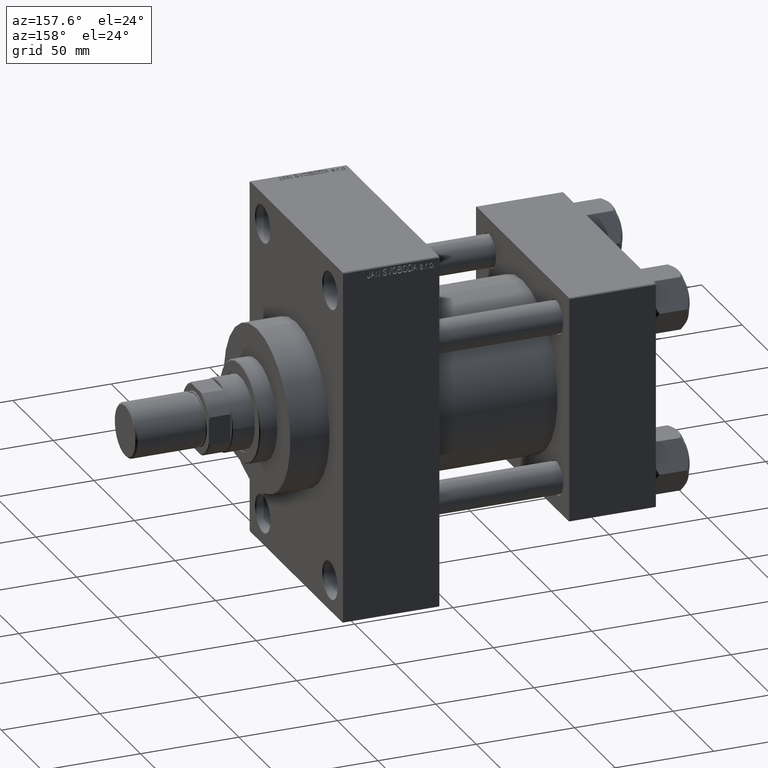
[diagram: clean part render]
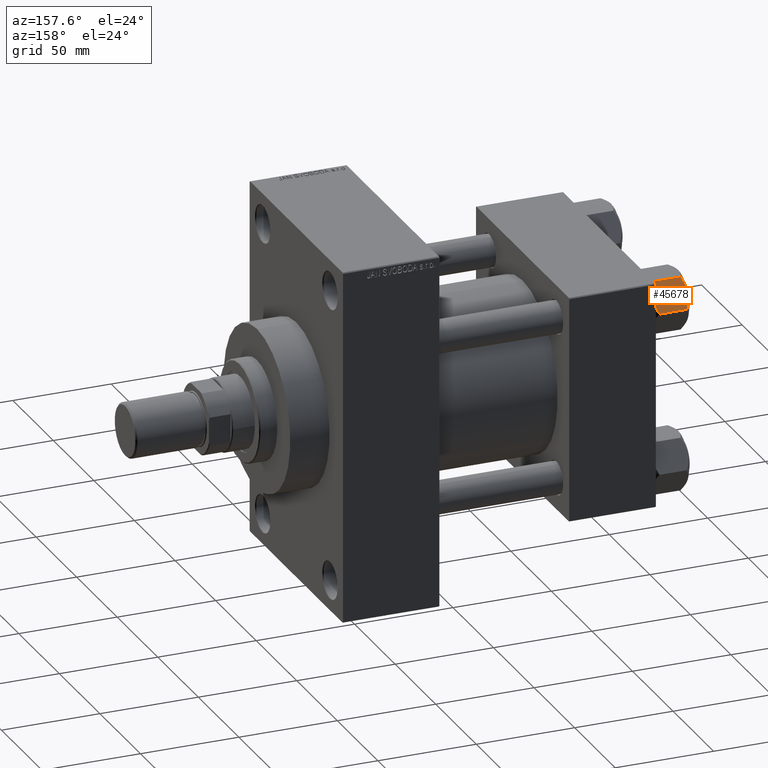
[diagram: same view with one face highlighted and labeled with its STEP entity id]
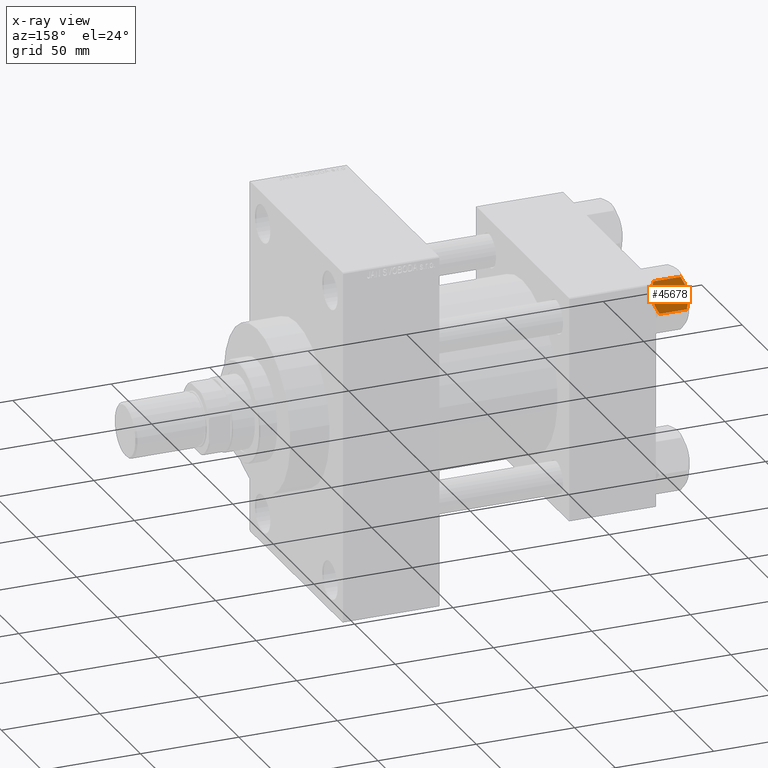
[diagram: x-ray of the same camera — body ghosted, the highlighted face saturated]
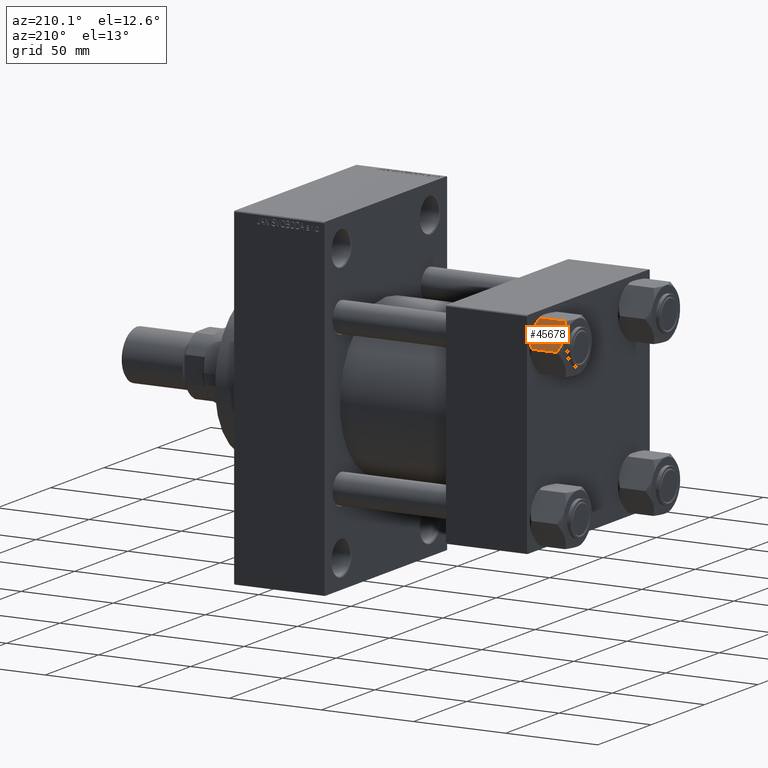
[diagram: same view with one face highlighted and labeled with its STEP entity id]
A machine part, auxiliary view. The second image highlights one B-rep face of the part: STEP entity #45678.
The next image is the same camera in x-ray: the body ghosted, the highlighted face saturated — about 0% of this face is hidden behind the body in this view.
A second angle (auxiliary view) of the same face is appended — the face is thin or edge-on in the first view.
In plain terms, the highlighted planar face has unit normal (0, -0.866, -0.5).
Its self-contained STEP definition (entity closure, byte-faithful):
#28 = DIRECTION ( 'NONE',  ( -0.5000000000000002220, -0.8660254037844384856, 0.000000000000000000 ) ) ;
#133 = EDGE_CURVE ( 'NONE', #13576, #27764, #678, .T. ) ;
#301 = CARTESIAN_POINT ( 'NONE',  ( 7.903528262322674358, -13.36532110482643176, -2.000000000000000000 ) ) ;
#678 = B_SPLINE_CURVE_WITH_KNOTS ( 'NONE', 3,
 ( #20773, #17718, #33131, #2561, #48522, #29577, #5871, #9675 ),
 .UNSPECIFIED., .F., .F.,
 ( 4, 2, 2, 4 ),
 ( 0.007890825462474425692, 0.01181022244528553977, 0.01376992093669109768, 0.01572961942809665559 ),
 .UNSPECIFIED. ) ;
#754 = DIRECTION ( 'NONE',  ( -0.000000000000000000, -0.000000000000000000, 1.000000000000000000 ) ) ;
#861 = VERTEX_POINT ( 'NONE', #8079 ) ;
#1622 = ORIENTED_EDGE ( 'NONE', *, *, #46628, .F. ) ;
#2516 = CARTESIAN_POINT ( 'NONE',  ( 15.52647173767732980, -0.1619957022865074481, -16.00000000000000000 ) ) ;
#2561 = CARTESIAN_POINT ( 'NONE',  ( 13.99051971937274352, -2.822342635978011938, -0.7317196846281139866 ) ) ;
#3470 = VERTEX_POINT ( 'NONE', #36950 ) ;
#4993 = LINE ( 'NONE', #44340, #9195 ) ;
#5670 = VERTEX_POINT ( 'NONE', #15829 ) ;
#5871 = CARTESIAN_POINT ( 'NONE',  ( 15.22736220980736022, -0.6800686015852294153, -1.706311779141445495 ) ) ;
#6320 = CARTESIAN_POINT ( 'NONE',  ( 11.04378428799594936, -7.926238119586006547, -0.05089381635301404999 ) ) ;
#7612 = ORIENTED_EDGE ( 'NONE', *, *, #24037, .F. ) ;
#7750 = CARTESIAN_POINT ( 'NONE',  ( 7.903528262322674358, -13.36532110482643176, -16.00000000000000000 ) ) ;
#8079 = CARTESIAN_POINT ( 'NONE',  ( 7.903528262322674358, -13.36532110482643176, -16.00000000000000000 ) ) ;
#8437 = EDGE_CURVE ( 'NONE', #19208, #11164, #38859, .T. ) ;
#9195 = VECTOR ( 'NONE', #9286, 1000.000000000000114 ) ;
#9286 = DIRECTION ( 'NONE',  ( 0.5000000000000002220, 0.8660254037844384856, -0.000000000000000000 ) ) ;
#9603 = VERTEX_POINT ( 'NONE', #45819 ) ;
#9675 = CARTESIAN_POINT ( 'NONE',  ( 15.52647173767732980, -0.1619957022865074481, -2.000000000000000000 ) ) ;
#10690 = CARTESIAN_POINT ( 'NONE',  ( 15.62000000000000455, -1.379485931020374819E-15, -16.00000000000000000 ) ) ;
#10695 = CARTESIAN_POINT ( 'NONE',  ( 14.92760668674625535, -1.199260397376455067, -16.58801072835992585 ) ) ;
#10879 = AXIS2_PLACEMENT_3D ( 'NONE', #27298, #19470, #28 ) ;
#10914 = VECTOR ( 'NONE', #19912, 1000.000000000000114 ) ;
#11164 = VERTEX_POINT ( 'NONE', #25452 ) ;
#11292 = CARTESIAN_POINT ( 'NONE',  ( 11.05297796109637964, -7.910314210667883650, -18.00000000000000000 ) ) ;
#11930 = PLANE ( 'NONE',  #10879 ) ;
#12309 = CARTESIAN_POINT ( 'NONE',  ( 11.71500000000000341, -6.763658403556471299, -18.00000000000000000 ) ) ;
#13122 = EDGE_CURVE ( 'NONE', #11164, #13576, #17453, .T. ) ;
#13576 = VERTEX_POINT ( 'NONE', #33275 ) ;
#14022 = ORIENTED_EDGE ( 'NONE', *, *, #13122, .F. ) ;
#14123 = CARTESIAN_POINT ( 'NONE',  ( 15.62000000000000455, -1.379485931020374819E-15, -16.00000000000000000 ) ) ;
#14939 = VECTOR ( 'NONE', #25725, 1000.000000000000114 ) ;
#15231 = VERTEX_POINT ( 'NONE', #2516 ) ;
#15474 = CARTESIAN_POINT ( 'NONE',  ( 13.04337073483127973, -4.462852799541088267, -17.75691532989870325 ) ) ;
#15633 = CARTESIAN_POINT ( 'NONE',  ( 11.71500000000000341, -6.763658403556471299, -18.00000000000000000 ) ) ;
#15829 = CARTESIAN_POINT ( 'NONE',  ( 7.810000000000002274, -13.52731680711293372, -16.00000000000000000 ) ) ;
#15901 = CARTESIAN_POINT ( 'NONE',  ( 7.810000000000002274, -13.52731680711293372, -1.999999999999998224 ) ) ;
#17453 = B_SPLINE_CURVE_WITH_KNOTS ( 'NONE', 3,
 ( #301, #19995, #25503, #40912, #28802, #6320, #36386, #37124 ),
 .UNSPECIFIED., .F., .F.,
 ( 4, 2, 2, 4 ),
 ( 4.472842641876105202E-07, 0.003945636373369308322, 0.005918230917921867007, 0.007890825462474425692 ),
 .UNSPECIFIED. ) ;
#17718 = CARTESIAN_POINT ( 'NONE',  ( 12.37702203890362540, -5.617002596445055396, 1.097754699641572845E-15 ) ) ;
#17902 = LINE ( 'NONE', #14123, #14939 ) ;
#19090 = CARTESIAN_POINT ( 'NONE',  ( 10.40215497533437450, -9.037572688741349225, -17.80281335400754372 ) ) ;
#19208 = VERTEX_POINT ( 'NONE', #15901 ) ;
#19338 = CARTESIAN_POINT ( 'NONE',  ( 8.202637790192644829, -12.84724820552770908, -16.29368822085855228 ) ) ;
#19470 = DIRECTION ( 'NONE',  ( -0.8660254037844385966, 0.5000000000000003331, 0.000000000000000000 ) ) ;
#19889 = EDGE_CURVE ( 'NONE', #5670, #19208, #39134, .T. ) ;
#19912 = DIRECTION ( 'NONE',  ( 0.5000000000000002220, 0.8660254037844384856, -0.000000000000000000 ) ) ;
#19937 = CARTESIAN_POINT ( 'NONE',  ( 7.810000000000002274, -13.52731680711293372, -18.00000000000000000 ) ) ;
#19995 = CARTESIAN_POINT ( 'NONE',  ( 8.502393313253756801, -12.32805640973649197, -1.411989271640069044 ) ) ;
#20773 = CARTESIAN_POINT ( 'NONE',  ( 11.71500000000000341, -6.763658403556471299, 0.000000000000000000 ) ) ;
#20824 = EDGE_LOOP ( 'NONE', ( #47894, #31303, #33831, #46596, #14022, #37035, #32185, #1622, #7612, #36991 ) ) ;
#21963 = EDGE_CURVE ( 'NONE', #9603, #3470, #43591, .T. ) ;
#22531 = CARTESIAN_POINT ( 'NONE',  ( 15.52647173767732980, -0.1619957022865074481, -16.00000000000000000 ) ) ;
#22876 = CARTESIAN_POINT ( 'NONE',  ( 8.506059550806615022, -12.32170630002230638, -16.56553707812499709 ) ) ;
#23291 = EDGE_CURVE ( 'NONE', #9603, #15231, #49296, .T. ) ;
#23890 = CARTESIAN_POINT ( 'NONE',  ( 9.439480280627259745, -10.70497417113492666, -17.26828031537187869 ) ) ;
#24037 = EDGE_CURVE ( 'NONE', #46768, #861, #33110, .T. ) ;
#25452 = CARTESIAN_POINT ( 'NONE',  ( 7.903528262322674358, -13.36532110482643176, -2.000000000000000000 ) ) ;
#25503 = CARTESIAN_POINT ( 'NONE',  ( 9.114548888011784200, -11.26777185211904353, -0.9142282604026938930 ) ) ;
#25725 = DIRECTION ( 'NONE',  ( -0.5000000000000002220, -0.8660254037844384856, 0.000000000000000000 ) ) ;
#26067 = CARTESIAN_POINT ( 'NONE',  ( 14.31545111198821729, -2.259544954993898624, -17.08577173959729834 ) ) ;
#27298 = CARTESIAN_POINT ( 'NONE',  ( 15.62000000000000455, -1.379485931020374819E-15, -18.00000000000000000 ) ) ;
#27764 = VERTEX_POINT ( 'NONE', #30003 ) ;
#28749 = B_SPLINE_CURVE_WITH_KNOTS ( 'NONE', 3,
 ( #22531, #10695, #26067, #46274, #15474, #37948, #41477, #34418 ),
 .UNSPECIFIED., .F., .F.,
 ( 4, 2, 2, 4 ),
 ( 4.472842641901889415E-07, 0.003945636373369311792, 0.005918230917921871344, 0.007890825462474430896 ),
 .UNSPECIFIED. ) ;
#28802 = CARTESIAN_POINT ( 'NONE',  ( 10.38662926516871998, -9.064464007571853443, -0.2430846701012968625 ) ) ;
#29577 = CARTESIAN_POINT ( 'NONE',  ( 14.92394044919338292, -1.205610507090636219, -1.434462921875003349 ) ) ;
#30003 = CARTESIAN_POINT ( 'NONE',  ( 15.52647173767732980, -0.1619957022865074481, -2.000000000000000000 ) ) ;
#31246 = CARTESIAN_POINT ( 'NONE',  ( 15.62000000000000455, -1.379485931020374819E-15, -18.00000000000000000 ) ) ;
#31303 = ORIENTED_EDGE ( 'NONE', *, *, #21963, .T. ) ;
#32185 = ORIENTED_EDGE ( 'NONE', *, *, #19889, .F. ) ;
#33110 = B_SPLINE_CURVE_WITH_KNOTS ( 'NONE', 3,
 ( #12309, #11292, #19090, #23890, #34253, #22876, #19338, #7750 ),
 .UNSPECIFIED., .F., .F.,
 ( 4, 2, 2, 4 ),
 ( 0.007890825462474430896, 0.01181022244528554324, 0.01376992093669110115, 0.01572961942809665906 ),
 .UNSPECIFIED. ) ;
#33131 = CARTESIAN_POINT ( 'NONE',  ( 13.02784502466562699, -4.489744118371590709, -0.1971866459924545845 ) ) ;
#33275 = CARTESIAN_POINT ( 'NONE',  ( 11.71500000000000341, -6.763658403556471299, 0.000000000000000000 ) ) ;
#33831 = ORIENTED_EDGE ( 'NONE', *, *, #43718, .F. ) ;
#34253 = CARTESIAN_POINT ( 'NONE',  ( 9.124083218049241495, -11.25125790807804016, -17.05261278537718539 ) ) ;
#34418 = CARTESIAN_POINT ( 'NONE',  ( 11.71500000000000341, -6.763658403556471299, -18.00000000000000000 ) ) ;
#36265 = VECTOR ( 'NONE', #39806, 1000.000000000000000 ) ;
#36386 = CARTESIAN_POINT ( 'NONE',  ( 11.38181071908714515, -7.340759166634874155, 7.741881137904304113E-16 ) ) ;
#36950 = CARTESIAN_POINT ( 'NONE',  ( 15.62000000000000455, -1.379485931020374819E-15, -1.999999999999998224 ) ) ;
#36991 = ORIENTED_EDGE ( 'NONE', *, *, #43043, .F. ) ;
#37035 = ORIENTED_EDGE ( 'NONE', *, *, #8437, .F. ) ;
#37124 = CARTESIAN_POINT ( 'NONE',  ( 11.71500000000000341, -6.763658403556471299, 0.000000000000000000 ) ) ;
#37948 = CARTESIAN_POINT ( 'NONE',  ( 12.38621571200405569, -5.601078687526932498, -17.94910618364698252 ) ) ;
#38859 = LINE ( 'NONE', #47178, #10914 ) ;
#39134 = LINE ( 'NONE', #19937, #47476 ) ;
#39806 = DIRECTION ( 'NONE',  ( -0.000000000000000000, -0.000000000000000000, 1.000000000000000000 ) ) ;
#40912 = CARTESIAN_POINT ( 'NONE',  ( 10.06459418565412456, -9.622245127110611307, -0.3836066851120584209 ) ) ;
#41477 = CARTESIAN_POINT ( 'NONE',  ( 12.04818928091285279, -6.186557640478066666, -17.99999999999999645 ) ) ;
#43043 = EDGE_CURVE ( 'NONE', #15231, #46768, #28749, .T. ) ;
#43591 = LINE ( 'NONE', #31246, #36265 ) ;
#43718 = EDGE_CURVE ( 'NONE', #27764, #3470, #4993, .T. ) ;
#44340 = CARTESIAN_POINT ( 'NONE',  ( 15.62000000000000455, -1.379485931020374819E-15, -1.999999999999998224 ) ) ;
#45678 = ADVANCED_FACE ( 'NONE', ( #46748 ), #11930, .F. ) ;
#45819 = CARTESIAN_POINT ( 'NONE',  ( 15.62000000000000455, -1.379485931020374819E-15, -16.00000000000000000 ) ) ;
#46274 = CARTESIAN_POINT ( 'NONE',  ( 13.36540581434587516, -3.905071680002325962, -17.61639331488793303 ) ) ;
#46596 = ORIENTED_EDGE ( 'NONE', *, *, #133, .F. ) ;
#46628 = EDGE_CURVE ( 'NONE', #861, #5670, #17902, .T. ) ;
#46748 = FACE_OUTER_BOUND ( 'NONE', #20824, .T. ) ;
#46768 = VERTEX_POINT ( 'NONE', #15633 ) ;
#47178 = CARTESIAN_POINT ( 'NONE',  ( 15.62000000000000455, -1.379485931020374819E-15, -1.999999999999998224 ) ) ;
#47476 = VECTOR ( 'NONE', #754, 1000.000000000000000 ) ;
#47894 = ORIENTED_EDGE ( 'NONE', *, *, #23291, .F. ) ;
#48428 = VECTOR ( 'NONE', #49799, 1000.000000000000114 ) ;
#48522 = CARTESIAN_POINT ( 'NONE',  ( 14.30591678195076355, -2.276058899034900662, -0.9473872146228133895 ) ) ;
#49296 = LINE ( 'NONE', #10690, #48428 ) ;
#49799 = DIRECTION ( 'NONE',  ( -0.5000000000000002220, -0.8660254037844384856, 0.000000000000000000 ) ) ;